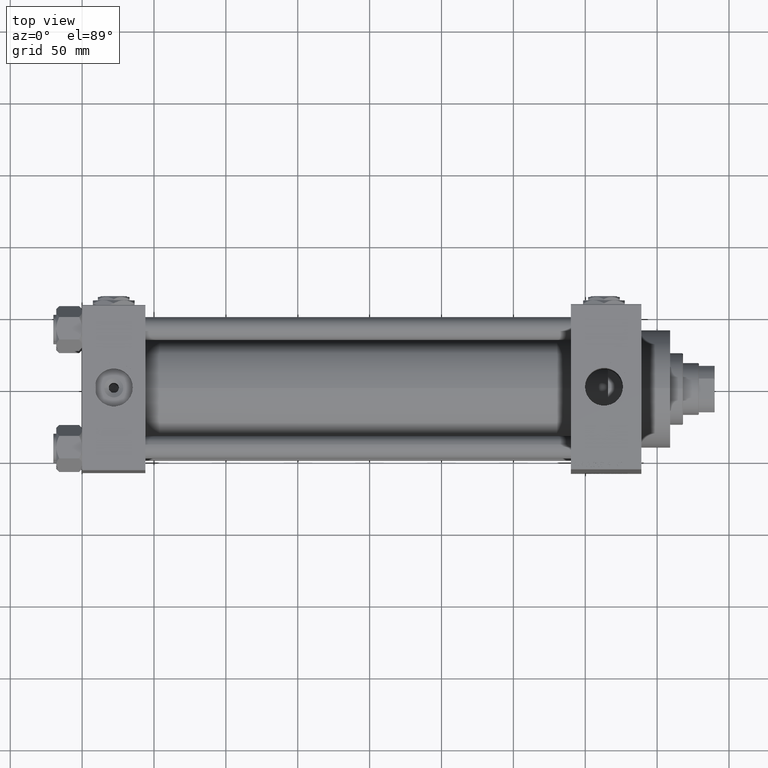
[diagram: clean part render]
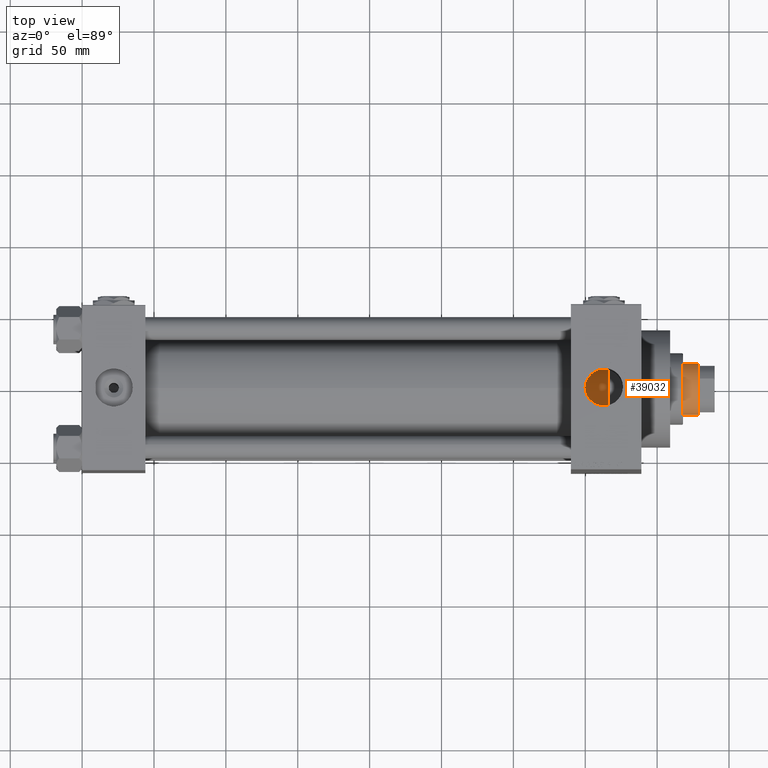
[diagram: same view with one face highlighted and labeled with its STEP entity id]
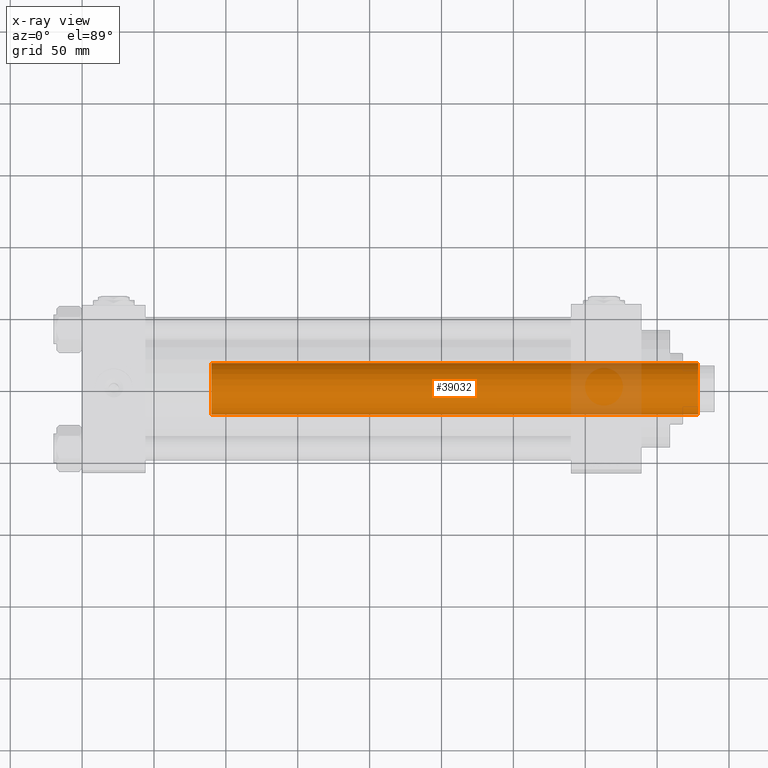
[diagram: x-ray of the same camera — body ghosted, the highlighted face saturated]
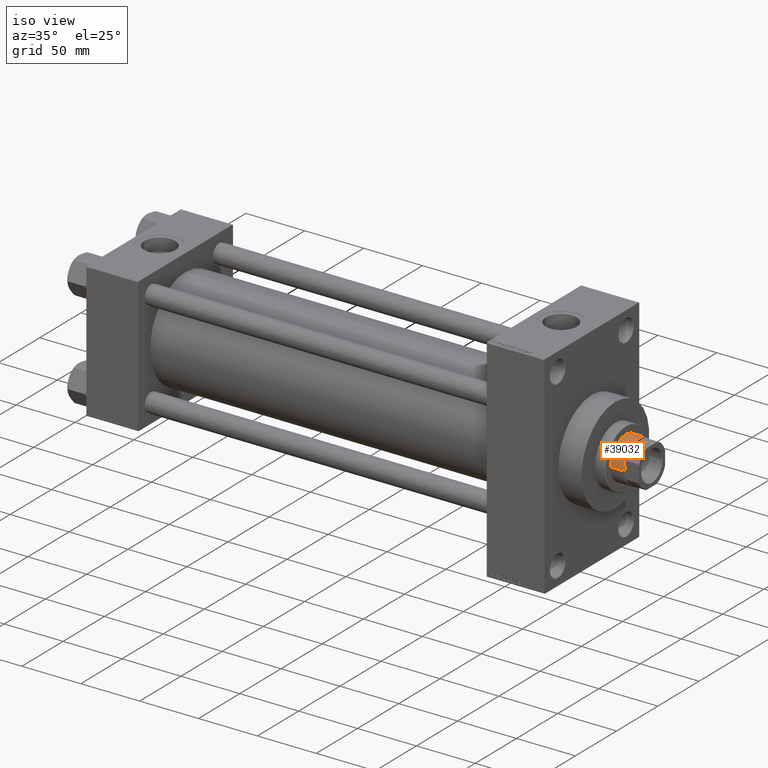
[diagram: same view with one face highlighted and labeled with its STEP entity id]
A machine part, top view. The second image highlights one B-rep face of the part: STEP entity #39032.
The next image is the same camera in x-ray: the body ghosted, the highlighted face saturated — about 10% of this face is hidden behind the body in this view.
A second angle (iso view) of the same face is appended — the face is thin or edge-on in the first view.
In plain terms, the highlighted cylindrical surface (edge-blend (fillet) strip) has radius 18 mm, axis along (-1, 0, 0).
Its self-contained STEP definition (entity closure, byte-faithful):
#911 = AXIS2_PLACEMENT_3D ( 'NONE', #13413, #40348, #13167 ) ;
#1710 = CARTESIAN_POINT ( 'NONE',  ( 0.000000000000000000, 0.000000000000000000, 384.5000000000000568 ) ) ;
#3752 = VECTOR ( 'NONE', #33765, 1000.000000000000000 ) ;
#4472 = EDGE_CURVE ( 'NONE', #29967, #48495, #33439, .T. ) ;
#5846 = CYLINDRICAL_SURFACE ( 'NONE', #18057, 18.00000000000000000 ) ;
#7793 = EDGE_CURVE ( 'NONE', #48495, #32695, #18663, .T. ) ;
#9972 = LINE ( 'NONE', #13509, #32748 ) ;
#10119 = DIRECTION ( 'NONE',  ( -0.000000000000000000, -0.000000000000000000, -1.000000000000000000 ) ) ;
#11328 = CARTESIAN_POINT ( 'NONE',  ( 18.00000000000000000, 2.204364238465235428E-15, 46.00000000000000000 ) ) ;
#12630 = CARTESIAN_POINT ( 'NONE',  ( -18.00000000000000000, 0.000000000000000000, 384.5000000000000568 ) ) ;
#13167 = DIRECTION ( 'NONE',  ( 1.000000000000000000, 0.000000000000000000, 0.000000000000000000 ) ) ;
#13413 = CARTESIAN_POINT ( 'NONE',  ( 0.000000000000000000, 0.000000000000000000, 46.00000000000000000 ) ) ;
#13509 = CARTESIAN_POINT ( 'NONE',  ( 18.00000000000000000, 2.204364238465235428E-15, 385.0000000000000000 ) ) ;
#13658 = CARTESIAN_POINT ( 'NONE',  ( 0.000000000000000000, 0.000000000000000000, 385.0000000000000000 ) ) ;
#18057 = AXIS2_PLACEMENT_3D ( 'NONE', #13658, #10119, #25489 ) ;
#18418 = CARTESIAN_POINT ( 'NONE',  ( -18.00000000000000000, 0.000000000000000000, 385.0000000000000000 ) ) ;
#18663 = LINE ( 'NONE', #18418, #3752 ) ;
#19940 = VERTEX_POINT ( 'NONE', #11328 ) ;
#24151 = ORIENTED_EDGE ( 'NONE', *, *, #4472, .T. ) ;
#24157 = ORIENTED_EDGE ( 'NONE', *, *, #7793, .T. ) ;
#24910 = EDGE_LOOP ( 'NONE', ( #28562, #24151, #24157, #46410 ) ) ;
#25489 = DIRECTION ( 'NONE',  ( -1.000000000000000000, 0.000000000000000000, 0.000000000000000000 ) ) ;
#25868 = CARTESIAN_POINT ( 'NONE',  ( -18.00000000000000000, 0.000000000000000000, 46.00000000000000000 ) ) ;
#28301 = CIRCLE ( 'NONE', #911, 18.00000000000000000 ) ;
#28562 = ORIENTED_EDGE ( 'NONE', *, *, #48225, .F. ) ;
#29967 = VERTEX_POINT ( 'NONE', #34913 ) ;
#31064 = FACE_OUTER_BOUND ( 'NONE', #24910, .T. ) ;
#32349 = EDGE_CURVE ( 'NONE', #32695, #19940, #28301, .T. ) ;
#32695 = VERTEX_POINT ( 'NONE', #25868 ) ;
#32748 = VECTOR ( 'NONE', #40679, 1000.000000000000000 ) ;
#33439 = CIRCLE ( 'NONE', #35840, 18.00000000000000000 ) ;
#33765 = DIRECTION ( 'NONE',  ( -0.000000000000000000, -0.000000000000000000, -1.000000000000000000 ) ) ;
#34913 = CARTESIAN_POINT ( 'NONE',  ( 18.00000000000000000, 2.204364238465235428E-15, 384.5000000000000568 ) ) ;
#35840 = AXIS2_PLACEMENT_3D ( 'NONE', #1710, #44016, #44258 ) ;
#39032 = ADVANCED_FACE ( 'NONE', ( #31064 ), #5846, .T. ) ;
#40348 = DIRECTION ( 'NONE',  ( 0.000000000000000000, 0.000000000000000000, 1.000000000000000000 ) ) ;
#40679 = DIRECTION ( 'NONE',  ( -0.000000000000000000, -0.000000000000000000, -1.000000000000000000 ) ) ;
#44016 = DIRECTION ( 'NONE',  ( 0.000000000000000000, 0.000000000000000000, -1.000000000000000000 ) ) ;
#44258 = DIRECTION ( 'NONE',  ( 1.000000000000000000, 0.000000000000000000, 0.000000000000000000 ) ) ;
#46410 = ORIENTED_EDGE ( 'NONE', *, *, #32349, .T. ) ;
#48225 = EDGE_CURVE ( 'NONE', #29967, #19940, #9972, .T. ) ;
#48495 = VERTEX_POINT ( 'NONE', #12630 ) ;